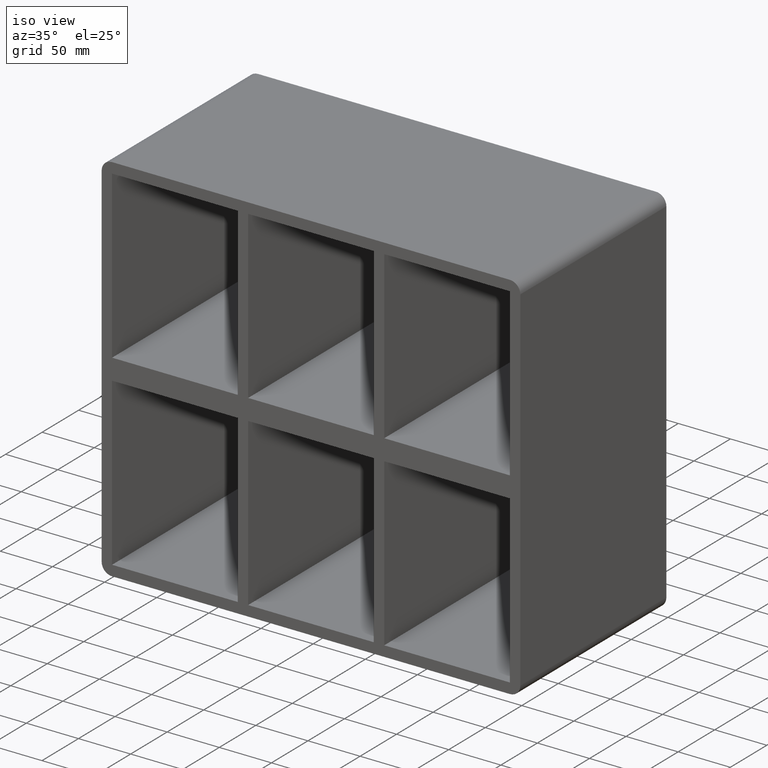
[diagram: clean part render]
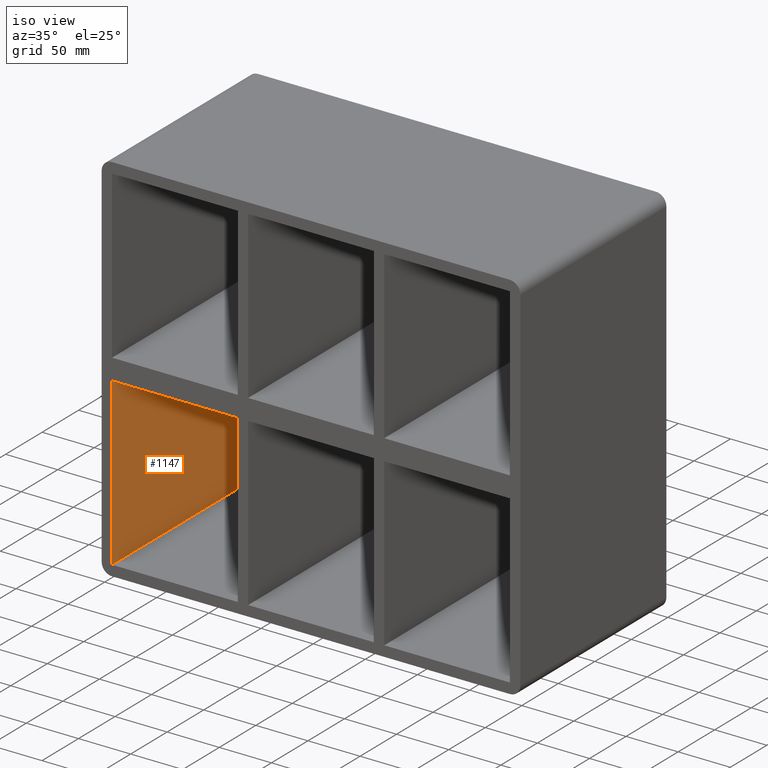
[diagram: same view with one face highlighted and labeled with its STEP entity id]
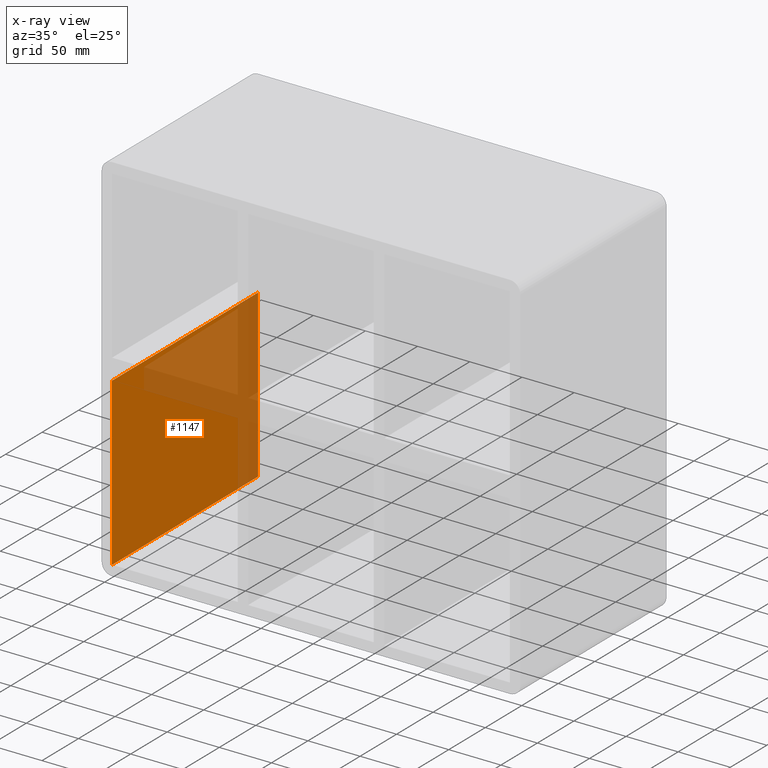
[diagram: x-ray of the same camera — body ghosted, the highlighted face saturated]
A machine part, iso view. The second image highlights one B-rep face of the part: STEP entity #1147.
The next image is the same camera in x-ray: the body ghosted, the highlighted face saturated — about 37% of this face is hidden behind the body in this view.
In plain terms, the highlighted planar face has unit normal (-1, 0, 0).
Its self-contained STEP definition (entity closure, byte-faithful):
#453=CARTESIAN_POINT('',(-190.74999999999966,-3.0,-10.000000000017906));
#454=VERTEX_POINT('',#453);
#469=CARTESIAN_POINT('',(-190.75000000000003,-3.0,-169.50000000000006));
#470=VERTEX_POINT('',#469);
#477=CARTESIAN_POINT('',(-190.75000000000003,-3.0,-169.50000000000006));
#478=DIRECTION('',(0.0,0.0,1.0));
#479=VECTOR('',#478,159.49999999998215);
#480=LINE('',#477,#479);
#481=EDGE_CURVE('',#470,#454,#480,.T.);
#654=CARTESIAN_POINT('',(-190.74999999999966,197.0,-10.000000000017906));
#655=VERTEX_POINT('',#654);
#656=CARTESIAN_POINT('',(-190.75000000000003,196.99999999999997,-10.000000000017906));
#657=DIRECTION('',(0.0,-1.0,0.0));
#658=VECTOR('',#657,199.99999999999997);
#659=LINE('',#656,#658);
#660=EDGE_CURVE('',#655,#454,#659,.T.);
#893=CARTESIAN_POINT('',(-190.75000000000003,197.0,-169.50000000000006));
#894=VERTEX_POINT('',#893);
#895=CARTESIAN_POINT('',(-190.75000000000003,197.0,-10.000000000017906));
#896=DIRECTION('',(0.0,0.0,-1.0));
#897=VECTOR('',#896,159.49999999998215);
#898=LINE('',#895,#897);
#899=EDGE_CURVE('',#655,#894,#898,.T.);
#1002=CARTESIAN_POINT('',(-190.75000000000003,-3.0,-169.50000000000006));
#1003=DIRECTION('',(0.0,1.0,0.0));
#1004=VECTOR('',#1003,200.0);
#1005=LINE('',#1002,#1004);
#1006=EDGE_CURVE('',#470,#894,#1005,.T.);
#1136=CARTESIAN_POINT('',(-190.75000000000003,0.0,-169.50000000000006));
#1137=DIRECTION('',(-1.0,0.0,0.0));
#1138=DIRECTION('',(0.0,0.0,1.0));
#1139=AXIS2_PLACEMENT_3D('',#1136,#1137,#1138);
#1140=PLANE('',#1139);
#1141=ORIENTED_EDGE('',*,*,#660,.T.);
#1142=ORIENTED_EDGE('',*,*,#481,.F.);
#1143=ORIENTED_EDGE('',*,*,#1006,.T.);
#1144=ORIENTED_EDGE('',*,*,#899,.F.);
#1145=EDGE_LOOP('',(#1141,#1142,#1143,#1144));
#1146=FACE_OUTER_BOUND('',#1145,.T.);
#1147=ADVANCED_FACE('',(#1146),#1140,.F.);